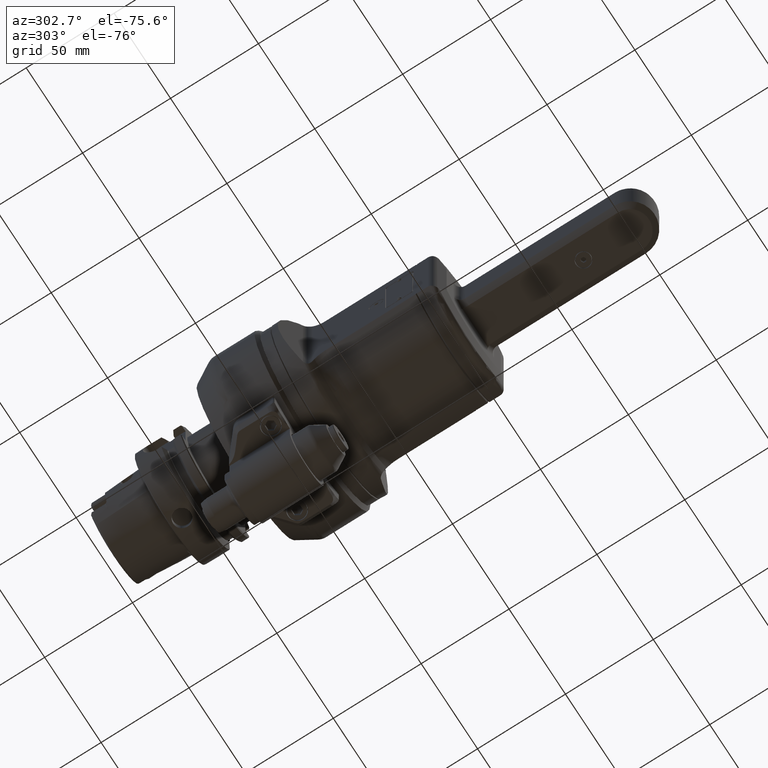
[diagram: clean part render]
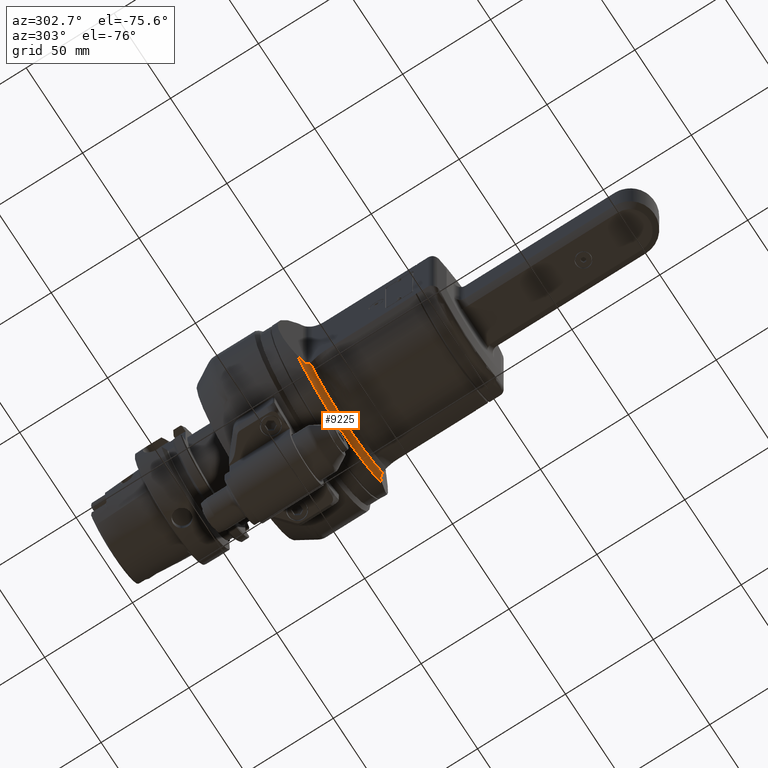
[diagram: same view with one face highlighted and labeled with its STEP entity id]
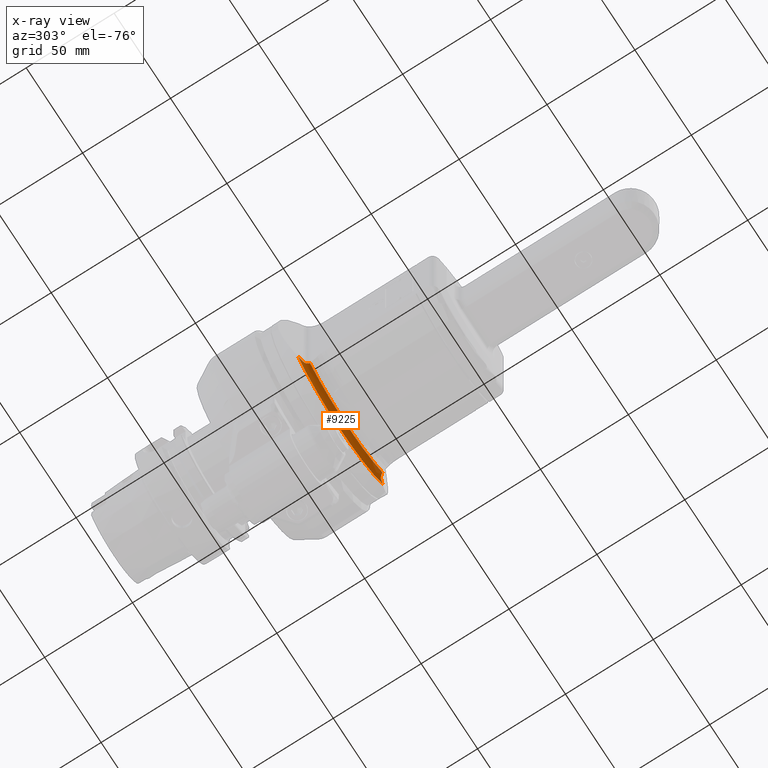
[diagram: x-ray of the same camera — body ghosted, the highlighted face saturated]
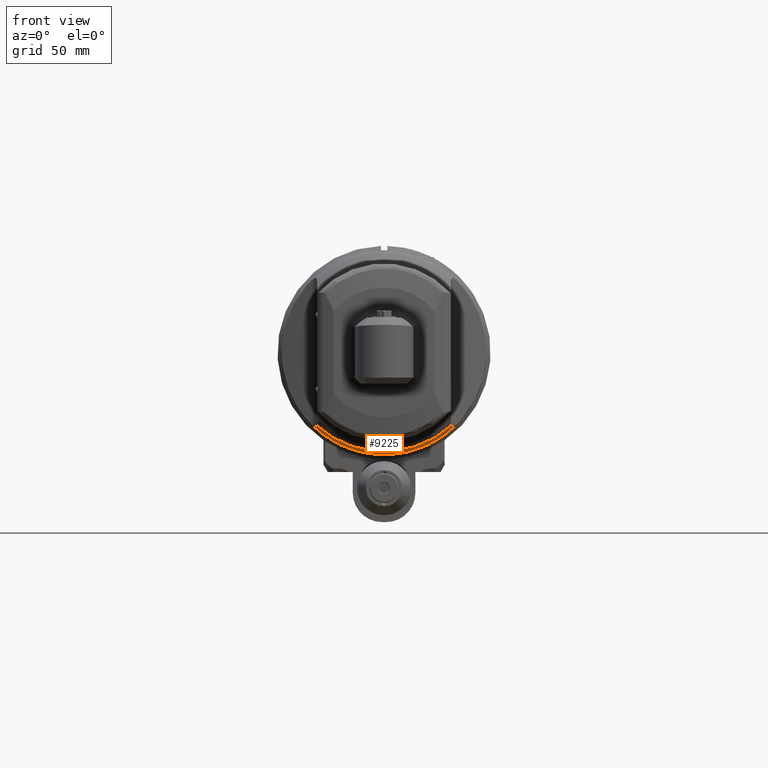
[diagram: same view with one face highlighted and labeled with its STEP entity id]
A machine part, auxiliary view. The second image highlights one B-rep face of the part: STEP entity #9225.
The next image is the same camera in x-ray: the body ghosted, the highlighted face saturated — about 0% of this face is hidden behind the body in this view.
A second angle (front view) of the same face is appended — the face is thin or edge-on in the first view.
In plain terms, the highlighted toroidal blend (fillet) surface has major radius 44 mm and minor (blend) radius 5 mm.
Its self-contained STEP definition (entity closure, byte-faithful):
#82=TOROIDAL_SURFACE('',#10156,44.,5.);
#1035=FACE_OUTER_BOUND('',#1625,.T.);
#1625=EDGE_LOOP('',(#8018,#8019,#8020,#8021,#8022,#8023));
#2100=CIRCLE('',#10154,47.53678040418);
#2102=CIRCLE('',#10157,49.);
#2326=B_SPLINE_CURVE_WITH_KNOTS('',3,(#46280,#46281,#46282,#46283,#46284,
#46285,#46286,#46287,#46288,#46289,#46290,#46291,#46292),.UNSPECIFIED.,
 .F.,.F.,(4,3,3,3,4),(7.15538185407971,7.25214697485281,7.57756809016083,
7.87139772916341,7.89672009865851),.UNSPECIFIED.);
#2329=B_SPLINE_CURVE_WITH_KNOTS('',3,(#46314,#46315,#46316,#46317,#46318,
#46319),.UNSPECIFIED.,.F.,.F.,(4,2,4),(-5.57603896463961,-5.42754104066302,
-5.18402172758838),.UNSPECIFIED.);
#2330=B_SPLINE_CURVE_WITH_KNOTS('',3,(#46320,#46321,#46322,#46323,#46324,
#46325,#46326,#46327,#46328,#46329),.UNSPECIFIED.,.F.,.F.,(4,3,3,4),(1.25466641580694,
1.33366635337754,1.59877209452795,1.92070516621072),.UNSPECIFIED.);
#2331=B_SPLINE_CURVE_WITH_KNOTS('',3,(#46330,#46331,#46332,#46333,#46334,
#46335),.UNSPECIFIED.,.F.,.F.,(4,2,4),(-12.381655856722,-12.1381365436474,
-11.9896386196708),.UNSPECIFIED.);
#4369=VERTEX_POINT('',#46277);
#4370=VERTEX_POINT('',#46279);
#4371=VERTEX_POINT('',#46300);
#4372=VERTEX_POINT('',#46310);
#4373=VERTEX_POINT('',#46311);
#4374=VERTEX_POINT('',#46313);
#5622=EDGE_CURVE('',#4369,#4370,#2326,.T.);
#5624=EDGE_CURVE('',#4371,#4370,#2100,.T.);
#5627=EDGE_CURVE('',#4372,#4373,#2102,.T.);
#5628=EDGE_CURVE('',#4373,#4374,#2329,.T.);
#5629=EDGE_CURVE('',#4371,#4374,#2330,.T.);
#5630=EDGE_CURVE('',#4369,#4372,#2331,.T.);
#8018=ORIENTED_EDGE('',*,*,#5627,.T.);
#8019=ORIENTED_EDGE('',*,*,#5628,.T.);
#8020=ORIENTED_EDGE('',*,*,#5629,.F.);
#8021=ORIENTED_EDGE('',*,*,#5624,.T.);
#8022=ORIENTED_EDGE('',*,*,#5622,.F.);
#8023=ORIENTED_EDGE('',*,*,#5630,.T.);
#9225=ADVANCED_FACE('',(#1035),#82,.T.);
#10154=AXIS2_PLACEMENT_3D('',#46301,#12338,#12339);
#10156=AXIS2_PLACEMENT_3D('',#46309,#12342,#12343);
#10157=AXIS2_PLACEMENT_3D('',#46312,#12344,#12345);
#12338=DIRECTION('center_axis',(-1.,0.,0.));
#12339=DIRECTION('ref_axis',(0.,1.,0.));
#12342=DIRECTION('center_axis',(-1.,0.,0.));
#12343=DIRECTION('ref_axis',(0.,1.,0.));
#12344=DIRECTION('center_axis',(1.,0.,0.));
#12345=DIRECTION('ref_axis',(0.,0.643740419047006,-0.765243930315808));
#46277=CARTESIAN_POINT('',(5.97275171778,34.50894395504,-34.6319194267));
#46279=CARTESIAN_POINT('',(8.464251895864,34.96449019495,-32.20605403651));
#46280=CARTESIAN_POINT('Ctrl Pts',(5.97275171777833,34.5089439550409,-34.6319194267002));
#46281=CARTESIAN_POINT('Ctrl Pts',(6.02497587956462,34.6371623248477,-34.488434721442));
#46282=CARTESIAN_POINT('Ctrl Pts',(6.08677720698805,34.7606830013,-34.343999166956));
#46283=CARTESIAN_POINT('Ctrl Pts',(6.16009395560676,34.8771514541709,-34.1986393230235));
#46284=CARTESIAN_POINT('Ctrl Pts',(6.40665819193115,35.2688348782046,-33.7097941466251));
#46285=CARTESIAN_POINT('Ctrl Pts',(6.74724159391664,35.5317620656567,-33.2797065027916));
#46286=CARTESIAN_POINT('Ctrl Pts',(7.17232798395548,35.5686949437201,-32.9258293866735));
#46287=CARTESIAN_POINT('Ctrl Pts',(7.55614751702971,35.6020424240101,-32.6063062199551));
#46288=CARTESIAN_POINT('Ctrl Pts',(8.01090824597232,35.4029083089139,-32.3685477587566));
#46289=CARTESIAN_POINT('Ctrl Pts',(8.37268594568173,35.0564179059683,-32.2378777224229));
#46290=CARTESIAN_POINT('Ctrl Pts',(8.40386410938987,35.0265572083216,-32.2266165203426));
#46291=CARTESIAN_POINT('Ctrl Pts',(8.434368950552,34.9958954454841,-32.2160356676585));
#46292=CARTESIAN_POINT('Ctrl Pts',(8.46425189586207,34.9644901949494,-32.2060540365062));
#46300=CARTESIAN_POINT('',(8.464251895872,34.96449019494,32.2060540365));
#46301=CARTESIAN_POINT('Origin',(8.464251895864,0.,0.));
#46309=CARTESIAN_POINT('Origin',(4.929964927799,0.,0.));
#46310=CARTESIAN_POINT('',(4.929964927799,31.5432805333,-37.49695258547));
#46311=CARTESIAN_POINT('',(4.929964927799,31.5432805333,37.49695258547));
#46312=CARTESIAN_POINT('Origin',(4.929964927799,0.,0.));
#46313=CARTESIAN_POINT('',(5.972751717779,34.50894395504,34.6319194267));
#46314=CARTESIAN_POINT('Ctrl Pts',(4.9299649277986,31.5432805333037,37.4969525854742));
#46315=CARTESIAN_POINT('Ctrl Pts',(5.05247791575252,31.9434144626713,37.160350917481));
#46316=CARTESIAN_POINT('Ctrl Pts',(5.17915522156922,32.3370787041385,36.8123078801923));
#46317=CARTESIAN_POINT('Ctrl Pts',(5.52255437356964,33.3491326653701,35.8688264642114));
#46318=CARTESIAN_POINT('Ctrl Pts',(5.74513508589218,33.9501100267786,35.2572909830991));
#46319=CARTESIAN_POINT('Ctrl Pts',(5.97275171777807,34.5089439550408,34.6319194267004));
#46320=CARTESIAN_POINT('Ctrl Pts',(8.46425189587194,34.964490194939,32.2060540365029));
#46321=CARTESIAN_POINT('Ctrl Pts',(8.36114034629046,35.0728544814595,32.2404958040319));
#46322=CARTESIAN_POINT('Ctrl Pts',(8.2517651509251,35.1714412030532,32.2815513553437));
#46323=CARTESIAN_POINT('Ctrl Pts',(8.13385684786183,35.2578596544103,32.3329214053108));
#46324=CARTESIAN_POINT('Ctrl Pts',(7.73818352162107,35.5478602328996,32.5053075563414));
#46325=CARTESIAN_POINT('Ctrl Pts',(7.27612041204739,35.6352550242126,32.8020361893345));
#46326=CARTESIAN_POINT('Ctrl Pts',(6.9166623200255,35.5157844681905,33.1580704000778));
#46327=CARTESIAN_POINT('Ctrl Pts',(6.48015178953426,35.3707045355231,33.590423115607));
#46328=CARTESIAN_POINT('Ctrl Pts',(6.1774820199339,35.0115884148956,34.0694275444482));
#46329=CARTESIAN_POINT('Ctrl Pts',(5.97275171777826,34.5089439550407,34.6319194267004));
#46330=CARTESIAN_POINT('Ctrl Pts',(5.97275171777808,34.508943955041,-34.6319194267002));
#46331=CARTESIAN_POINT('Ctrl Pts',(5.74513508589217,33.9501100267788,-35.2572909830989));
#46332=CARTESIAN_POINT('Ctrl Pts',(5.52255437356961,33.3491326653703,-35.8688264642112));
#46333=CARTESIAN_POINT('Ctrl Pts',(5.17915522156918,32.3370787041385,-36.8123078801922));
#46334=CARTESIAN_POINT('Ctrl Pts',(5.05247791575246,31.9434144626714,-37.1603509174809));
#46335=CARTESIAN_POINT('Ctrl Pts',(4.92996492779853,31.5432805333037,-37.4969525854742));